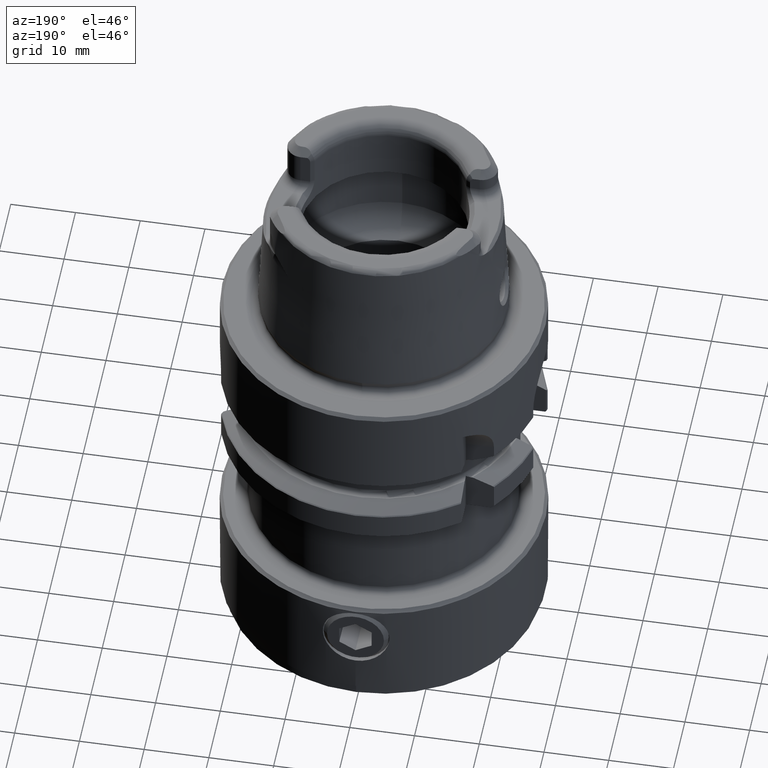
[diagram: clean part render]
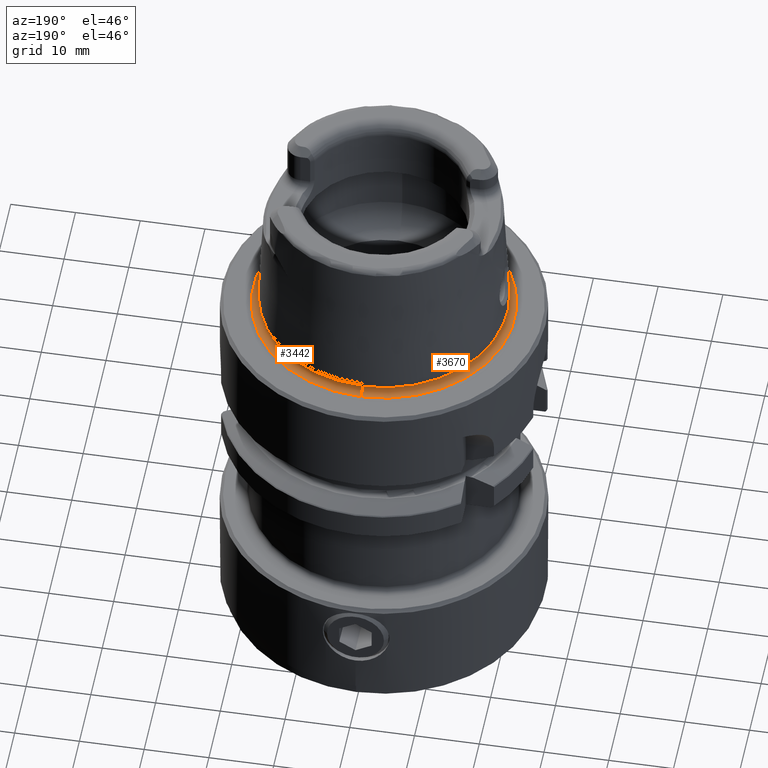
[diagram: same view with one multi-face feature highlighted, each face labeled with its STEP entity id]
A machine part, auxiliary view. The highlighted faces form ONE feature: a constant-radius fillet chain: 2 tangent blend faces with common blend radius 1 mm. The faces share edges in the B-rep.
Their STEP definitions:
[1] entity #3442 (Torus):
#1636=VERTEX_POINT('NONE',#4628);
#1708=EDGE_CURVE('NONE',#3418,#3022,#4702,.T.);
#2912=EDGE_CURVE('NONE',#3022,#2984,#6017,.F.);
#2984=VERTEX_POINT('NONE',#6091);
#3022=VERTEX_POINT('NONE',#6134);
#3228=EDGE_CURVE('NONE',#3418,#1636,#6368,.T.);
#3418=VERTEX_POINT('NONE',#6581);
#3442=ADVANCED_FACE('NONE',(#6607),#6608,.F.);
#3550=EDGE_CURVE('NONE',#1636,#2984,#6732,.T.);
#4628=CARTESIAN_POINT('',(0.0,18.9615649715845,0.750000000000011));
#4702=CIRCLE('',#8319,0.999999999999682);
#6017=CIRCLE('',#11656,20.2203840166866);
#6091=CARTESIAN_POINT('',(0.0,20.2203840166866,-0.215925826288751));
#6134=CARTESIAN_POINT('',(-2.52562670203464E-015,-20.2203840166866,-0.215925826288751));
#6368=CIRCLE('',#12697,18.9615649715845);
#6581=CARTESIAN_POINT('',(-2.32212198492755E-015,-18.9615649715845,0.750000000000011));
#6607=FACE_OUTER_BOUND('',#13310,.T.);
#6608=TOROIDAL_SURFACE('',#13311,19.9615649715842,0.999999999999682);
#6732=CIRCLE('',#13766,0.999999999999682);
#8319=AXIS2_PLACEMENT_3D('',#17181,#17182,#17183);
#11656=AXIS2_PLACEMENT_3D('',#18547,#18548,#18549);
#12697=AXIS2_PLACEMENT_3D('',#18963,#18964,#18965);
#13310=EDGE_LOOP('',(#19273,#19274,#19275,#19276));
#13311=AXIS2_PLACEMENT_3D('',#19277,#19278,#19279);
#13766=AXIS2_PLACEMENT_3D('',#19459,#19460,#19461);
#17181=CARTESIAN_POINT('',(-2.44458666484225E-015,-19.9615649715842,0.750000000000011));
#17182=DIRECTION('',(-1.0,1.22464679914736E-016,6.16249545009375E-036));
#17183=DIRECTION('',(1.22464679914736E-016,1.0,0.0));
#18547=CARTESIAN_POINT('',(0.0,0.0,-0.215925826288751));
#18548=DIRECTION('',(0.0,0.0,-1.0));
#18549=DIRECTION('',(0.0,1.0,0.0));
#18963=CARTESIAN_POINT('',(0.0,6.16249545009179E-036,0.750000000000011));
#18964=DIRECTION('',(0.0,0.0,1.0));
#18965=DIRECTION('',(0.0,1.0,-0.0));
#19273=ORIENTED_EDGE('',*,*,#3228,.F.);
#19274=ORIENTED_EDGE('',*,*,#1708,.T.);
#19275=ORIENTED_EDGE('',*,*,#2912,.T.);
#19276=ORIENTED_EDGE('',*,*,#3550,.F.);
#19277=CARTESIAN_POINT('',(0.0,0.0,0.750000000000011));
#19278=DIRECTION('',(0.0,-5.03205941042292E-020,1.0));
#19279=DIRECTION('',(-0.0,1.0,5.03205941042292E-020));
#19459=CARTESIAN_POINT('',(0.0,19.9615649715842,0.750000000000011));
#19460=DIRECTION('',(1.0,0.0,0.0));
#19461=DIRECTION('',(0.0,-0.0,1.0));
[2] entity #3670 (Torus):
#1636=VERTEX_POINT('NONE',#4628);
#1708=EDGE_CURVE('NONE',#3418,#3022,#4702,.T.);
#1868=EDGE_CURVE('NONE',#1636,#3418,#4877,.T.);
#2972=EDGE_CURVE('NONE',#2984,#3022,#6078,.F.);
#2984=VERTEX_POINT('NONE',#6091);
#3022=VERTEX_POINT('NONE',#6134);
#3418=VERTEX_POINT('NONE',#6581);
#3550=EDGE_CURVE('NONE',#1636,#2984,#6732,.T.);
#3670=ADVANCED_FACE('NONE',(#6866),#6867,.F.);
#4628=CARTESIAN_POINT('',(0.0,18.9615649715845,0.750000000000011));
#4702=CIRCLE('',#8319,0.999999999999682);
#4877=CIRCLE('',#8791,18.9615649715845);
#6078=CIRCLE('',#11799,20.2203840166866);
#6091=CARTESIAN_POINT('',(0.0,20.2203840166866,-0.215925826288751));
#6134=CARTESIAN_POINT('',(-2.52562670203464E-015,-20.2203840166866,-0.215925826288751));
#6581=CARTESIAN_POINT('',(-2.32212198492755E-015,-18.9615649715845,0.750000000000011));
#6732=CIRCLE('',#13766,0.999999999999682);
#6866=FACE_OUTER_BOUND('',#14290,.T.);
#6867=TOROIDAL_SURFACE('',#14291,19.9615649715842,0.999999999999682);
#8319=AXIS2_PLACEMENT_3D('',#17181,#17182,#17183);
#8791=AXIS2_PLACEMENT_3D('',#17400,#17401,#17402);
#11799=AXIS2_PLACEMENT_3D('',#18586,#18587,#18588);
#13766=AXIS2_PLACEMENT_3D('',#19459,#19460,#19461);
#14290=EDGE_LOOP('',(#19653,#19654,#19655,#19656));
#14291=AXIS2_PLACEMENT_3D('',#19657,#19658,#19659);
#17181=CARTESIAN_POINT('',(-2.44458666484225E-015,-19.9615649715842,0.750000000000011));
#17182=DIRECTION('',(-1.0,1.22464679914736E-016,6.16249545009375E-036));
#17183=DIRECTION('',(1.22464679914736E-016,1.0,0.0));
#17400=CARTESIAN_POINT('',(0.0,6.16249545009179E-036,0.750000000000011));
#17401=DIRECTION('',(0.0,0.0,1.0));
#17402=DIRECTION('',(0.0,1.0,-0.0));
#18586=CARTESIAN_POINT('',(0.0,0.0,-0.215925826288751));
#18587=DIRECTION('',(0.0,0.0,-1.0));
#18588=DIRECTION('',(0.0,1.0,0.0));
#19459=CARTESIAN_POINT('',(0.0,19.9615649715842,0.750000000000011));
#19460=DIRECTION('',(1.0,0.0,0.0));
#19461=DIRECTION('',(0.0,-0.0,1.0));
#19653=ORIENTED_EDGE('',*,*,#1868,.F.);
#19654=ORIENTED_EDGE('',*,*,#3550,.T.);
#19655=ORIENTED_EDGE('',*,*,#2972,.T.);
#19656=ORIENTED_EDGE('',*,*,#1708,.F.);
#19657=CARTESIAN_POINT('',(0.0,0.0,0.750000000000011));
#19658=DIRECTION('',(0.0,-5.03205941042292E-020,1.0));
#19659=DIRECTION('',(-0.0,1.0,5.03205941042292E-020));